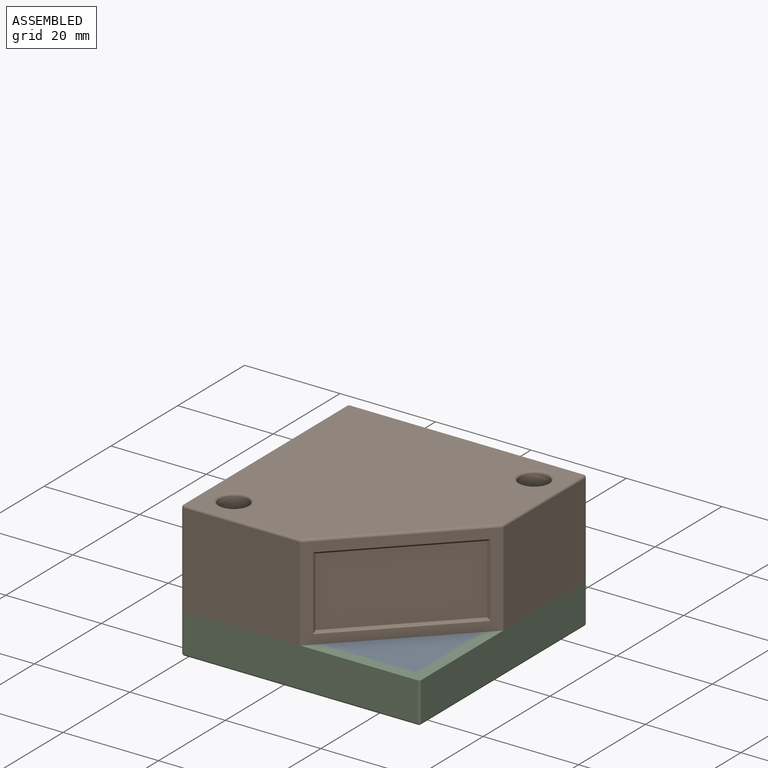
[diagram: assembled view]
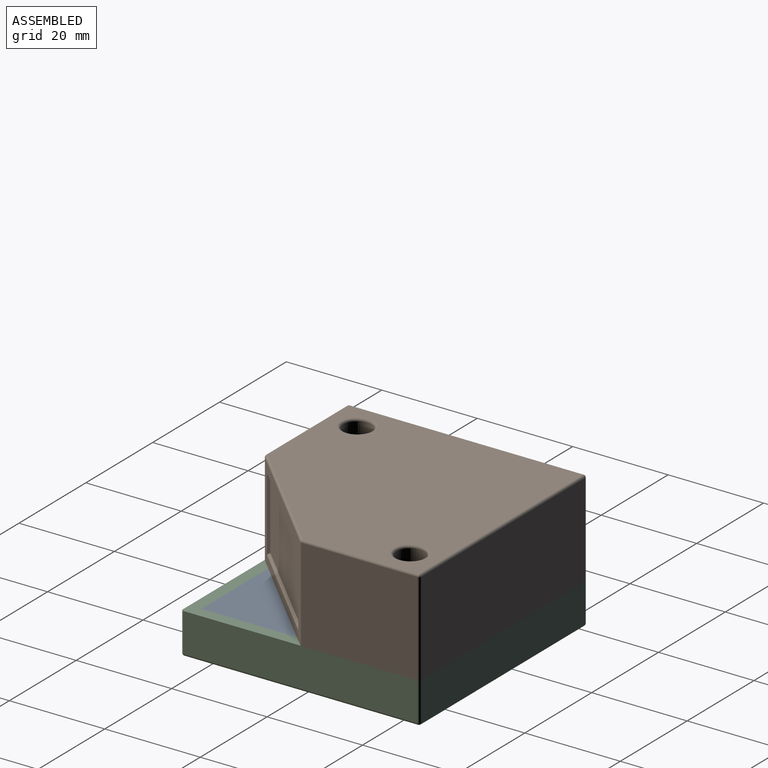
[diagram: assembled view, second angle]
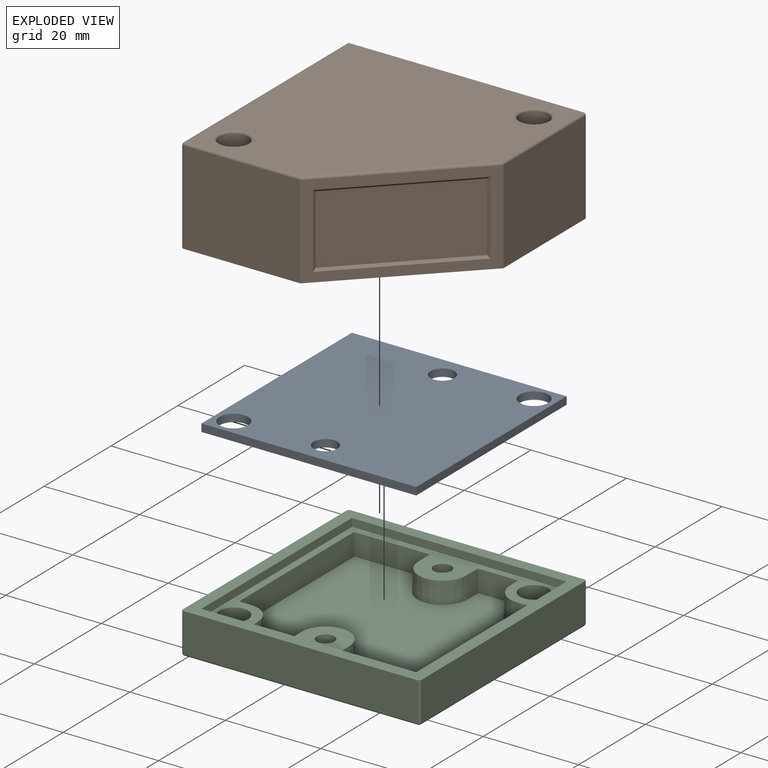
[diagram: exploded view]
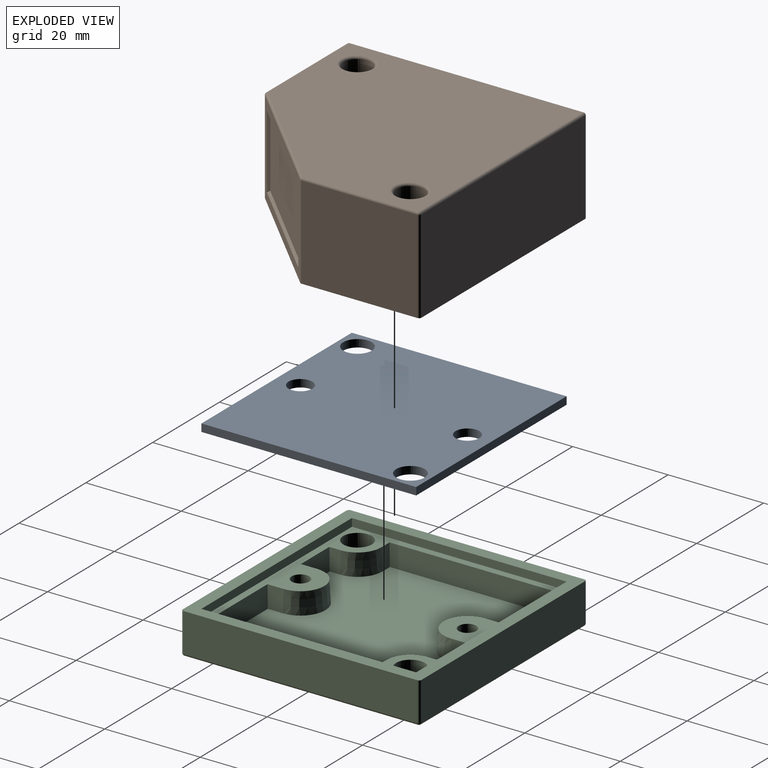
[diagram: exploded view, second angle]
ASSEMBLY  parts=3 mates=2
PART A: 10 faces, bbox 45x45x1.6 mm
  f0: plane 45x1.6mm, normal (0,-1,0), area 72mm2, adj f1,f4,f8,f9
  f1: plane 45x1.6mm, normal (1,0,0), area 72mm2, adj f0,f2,f8,f9
  f2: plane 45x1.6mm, normal (0,1,0), area 72mm2, adj f1,f4,f8,f9
  f3: cylinder r=3mm len=6mm, axis (0,0,-1), area 30.2mm2, adj f8,f9
  f4: plane 45x1.6mm, normal (-1,0,0), area 72mm2, adj f0,f2,f8,f9
  f5: cylinder r=2.5mm len=5mm, axis (0,0,-1), area 25.1mm2, adj f8,f9
  f6: cylinder r=2.5mm len=5mm, axis (0,0,-1), area 25.1mm2, adj f8,f9
  f7: cylinder r=3mm len=6mm, axis (0,0,-1), area 30.2mm2, adj f8,f9
  f8: plane 45x45mm, normal (0,0,1), area 1929.2mm2, adj f0,f1,f2,f3,f4,f5,f6,f7
  f9: plane 45x45mm, normal (0,0,-1), area 1929.2mm2, adj f0,f1,f2,f3,f4,f5,f6,f7
PART B: 55 faces, bbox 50x50x20 mm
  f0: plane 24.71x24.71mm, normal (0.71,-0.71,0), area 201.8mm2, adj f8,f43,f47,f49,f51,f52,f53,f54
  f1: plane 17.5x17.5mm, normal (0,-1,0), area 306.2mm2, adj f2,f8,f13,f28
  f2: plane 45x45mm, normal (0,0,-1), area 1435.6mm2, adj f1,f3,f4,f5,f6,f13,f16,f17
  f3: plane 17.5x8.5mm, normal (0,1,0), area 148.8mm2, adj f2,f8,f18,f24
  f4: plane 17.5x16.98mm, normal (-0.71,0.71,0), area 420.3mm2, adj f2,f5,f8,f23
  f5: plane 17.5x12.46mm, normal (-1,0,0), area 218.1mm2, adj f2,f4,f8,f19
  f6: plane 17.5x8.5mm, normal (0,-1,0), area 148.8mm2, adj f2,f8,f21,f30
  f7: plane 49x49mm, normal (0,0,1), area 2018.8mm2, adj f33,f34,f36,f41,f42,f46,f47
  f8: plane 50x50mm, normal (0,0,-1), area 680.8mm2, adj f0,f1,f3,f4,f5,f6,f9,f10
  f9: plane 24.29x19.5mm, normal (0,-1,0), area 473.7mm2, adj f8,f40,f46,f49
  f10: plane 24.29x19.5mm, normal (1,0,0), area 473.7mm2, adj f8,f37,f42,f43
  f11: plane 49x19.5mm, normal (0,1,0), area 955.5mm2, adj f8,f35,f36,f37
  f12: plane 49x19.5mm, normal (-1,0,0), area 822.8mm2, adj f8,f32,f35,f40,f41
  f13: plane 36x17.5mm, normal (1,0,0), area 497.3mm2, adj f1,f2,f8,f16,f32
  f14: cylinder r=3mm len=19.5mm, axis (0,0,-1), area 367.6mm2, adj f8,f33
  f15: cylinder r=3mm len=19.5mm, axis (0,0,-1), area 367.6mm2, adj f8,f34
  f16: plane 17.5x4mm, normal (0,1,0), area 70mm2, adj f2,f8,f13,f17
  f17: cylinder r=5mm len=17.5mm, axis (0,0,1), area 137.4mm2, adj f2,f8,f16,f18
  f18: plane 17.5x4mm, normal (1,0,0), area 70mm2, adj f2,f3,f8,f17
  f19: plane 17.5x4mm, normal (0,-1,0), area 70mm2, adj f2,f5,f8,f20
  f20: cylinder r=5mm len=17.5mm, axis (0,0,1), area 137.4mm2, adj f2,f8,f19,f21
  f21: plane 17.5x4mm, normal (-1,0,0), area 70mm2, adj f2,f6,f8,f20
  f22: cylinder r=5mm len=17.5mm, axis (0,0,1), area 206.2mm2, adj f2,f8,f23,f24
  f23: plane 17.5x1.98mm, normal (0.71,0.71,0), area 49.1mm2, adj f2,f4,f8,f22
  f24: plane 17.5x5mm, normal (-1,0,0), area 87.5mm2, adj f2,f3,f8,f22
  f25: cylinder r=1.51mm len=17.5mm, axis (0,0,1), area 166mm2, adj f8,f26
  f26: plane 3.02x3.02mm, normal (0,0,-1), area 7.2mm2, adj f25
  f27: cylinder r=5mm len=17.5mm, axis (0,0,1), area 274.9mm2, adj f2,f8,f28,f30
  f28: plane 17.5x5mm, normal (-1,0,0), area 87.5mm2, adj f1,f2,f8,f27
  f29: cylinder r=1.51mm len=17.5mm, axis (0,0,1), area 166mm2, adj f8,f31
  f30: plane 17.5x5mm, normal (1,0,0), area 87.5mm2, adj f2,f6,f8,f27
  f31: plane 3.02x3.02mm, normal (0,0,-1), area 7.2mm2, adj f29
  f32: cylinder r=6.5mm len=13mm, axis (-1,0,0), area 102.1mm2, adj f12,f13
  f33: torus R=3.5mm, axis (0,0,1), area 15.7mm2, adj f7,f14
  f34: torus R=3.5mm, axis (0,0,1), area 15.7mm2, adj f7,f15
  f35: cylinder r=0.5mm len=19.5mm, axis (0,0,-1), area 15.3mm2, adj f8,f11,f12,f38
  f36: cylinder r=0.5mm len=49mm, axis (1,0,0), area 38.5mm2, adj f7,f11,f38,f39
  f37: cylinder r=0.5mm len=19.5mm, axis (0,0,1), area 15.3mm2, adj f8,f10,f11,f39
  f38: sphere r=0.5mm, area 0.4mm2, adj f35,f36,f41
  f39: sphere r=0.5mm, area 0.4mm2, adj f36,f37,f42
  f40: cylinder r=0.5mm len=19.5mm, axis (0,0,1), area 15.3mm2, adj f8,f9,f12,f44
  f41: cylinder r=0.5mm len=49mm, axis (0,1,0), area 38.5mm2, adj f7,f12,f38,f44
  f42: cylinder r=0.5mm len=24.29mm, axis (0,-1,0), area 19.1mm2, adj f7,f10,f39,f45
  f43: cylinder r=0.5mm len=19.5mm, axis (0,0,1), area 7.7mm2, adj f0,f8,f10,f45
  f44: sphere r=0.5mm, area 0.4mm2, adj f40,f41,f46
  f45: sphere r=0.5mm, area 0.2mm2, adj f42,f43,f47
  f46: cylinder r=0.5mm len=24.29mm, axis (-1,0,0), area 19.1mm2, adj f7,f9,f44,f48
  f47: cylinder r=0.5mm len=25.06mm, axis (-0.71,-0.71,0), area 27.4mm2, adj f0,f7,f45,f48
  f48: sphere r=0.5mm, area 0.2mm2, adj f46,f47,f49
  f49: cylinder r=0.5mm len=19.5mm, axis (0,0,1), area 7.7mm2, adj f0,f8,f9,f48
  f50: plane 21.17x21.17mm, normal (0.71,-0.71,0), area 434.1mm2, adj f51,f52,f53,f54
  f51: plane 15.5x0.71mm, normal (0,-1,0), area 10.6mm2, adj f0,f50,f52,f53
  f52: plane 21.88x21.88mm, normal (0.5,-0.5,-0.71), area 21.5mm2, adj f0,f50,f51,f54
  f53: plane 21.88x21.88mm, normal (0.5,-0.5,0.71), area 21.5mm2, adj f0,f50,f51,f54
  f54: plane 15.5x0.71mm, normal (1,0,0), area 10.6mm2, adj f0,f50,f52,f53
PART C: 52 faces, bbox 50x50x8.6 mm
  f0: plane 49x49mm, normal (0,0,-1), area 2247.1mm2, adj f35,f37,f38,f39,f43,f44,f48,f49
  f1: cylinder r=1.85mm len=3.7mm, axis (0,0,1), area 34.9mm2, adj f3,f36
  f2: cylinder r=1.85mm len=3.7mm, axis (0,0,1), area 34.9mm2, adj f3,f34
  f3: plane 44.83x44.83mm, normal (0,0,1), area 428.1mm2, adj f1,f2,f9,f10,f11,f12,f13,f14
  f4: plane 50x50mm, normal (0,0,1), area 474.8mm2, adj f5,f6,f7,f8,f9,f10,f11,f12
  f5: plane 49x8.1mm, normal (0,-1,0), area 396.9mm2, adj f4,f45,f49,f51
  f6: plane 49x8.1mm, normal (1,0,0), area 396.9mm2, adj f4,f42,f48,f51
  f7: plane 49x8.1mm, normal (0,1,0), area 396.9mm2, adj f4,f40,f42,f43
  f8: plane 49x8.1mm, normal (-1,0,0), area 396.9mm2, adj f4,f40,f44,f45
  f9: plane 45x1.6mm, normal (0,1,0.05), area 72mm2, adj f3,f4,f10,f12
  f10: plane 45x1.6mm, normal (-1,0,0.05), area 72mm2, adj f3,f4,f9,f11
  f11: plane 45x1.6mm, normal (0,-1,0.05), area 72mm2, adj f3,f4,f10,f12
  f12: plane 45x1.6mm, normal (1,0,0.05), area 72mm2, adj f3,f4,f9,f11
  f13: plane 4.5x2.42mm, normal (1,0,0.05), area 10.4mm2, adj f3,f14,f30,f31
  f14: plane 8.5x4.5mm, normal (0,1,0.05), area 37.2mm2, adj f3,f13,f15,f31
  f15: plane 4.5x3.42mm, normal (-1,0,0.05), area 14.9mm2, adj f3,f14,f16,f31
  f16: cone r=5mm half-angle=3deg, axis (0,0,-1), area 72.5mm2, adj f3,f15,f17,f31
  f17: plane 4.5x3.42mm, normal (1,0,0.05), area 14.9mm2, adj f3,f16,f18,f31
  f18: plane 15.92x4.5mm, normal (0,1,0.05), area 70.7mm2, adj f3,f17,f19,f31
  f19: plane 34.42x4.5mm, normal (-1,0,0.05), area 154mm2, adj f3,f18,f20,f31
  f20: plane 4.5x2.42mm, normal (0,-1,0.05), area 10.4mm2, adj f3,f19,f21,f31
  f21: cone r=5mm half-angle=3deg, axis (0,0,-1), area 36.2mm2, adj f3,f20,f22,f31
  f22: plane 4.5x2.42mm, normal (-1,0,0.05), area 10.4mm2, adj f3,f21,f23,f31
  f23: plane 8.5x4.5mm, normal (0,-1,0.05), area 37.2mm2, adj f3,f22,f24,f31
  f24: plane 4.5x3.42mm, normal (1,0,0.05), area 14.9mm2, adj f3,f23,f25,f31
  f25: cone r=5mm half-angle=3deg, axis (0,0,-1), area 72.5mm2, adj f3,f24,f26,f31
  f26: plane 4.5x3.42mm, normal (-1,0,0.05), area 14.9mm2, adj f3,f25,f27,f31
  f27: plane 15.92x4.5mm, normal (0,-1,0.05), area 70.7mm2, adj f3,f26,f28,f31
  f28: plane 34.42x4.5mm, normal (1,0,0.05), area 154mm2, adj f3,f27,f29,f31
  f29: plane 4.5x2.42mm, normal (0,1,0.05), area 10.4mm2, adj f3,f28,f30,f31
  f30: cone r=5mm half-angle=3deg, axis (0,0,-1), area 36.2mm2, adj f3,f13,f29,f31
  f31: plane 41.36x41.36mm, normal (0,0,1), area 1459.7mm2, adj f13,f14,f15,f16,f17,f18,f19,f20
  f32: cylinder r=3mm len=6.5mm, axis (0,0,1), area 122.5mm2, adj f3,f39
  f33: cylinder r=3mm len=6.5mm, axis (0,0,1), area 122.5mm2, adj f3,f38
  f34: plane 7x7mm, normal (0,0,-1), area 27.7mm2, adj f2,f35
  f35: cylinder r=3.5mm len=7mm, axis (0,0,-1), area 88mm2, adj f0,f34
  f36: plane 7x7mm, normal (0,0,-1), area 27.7mm2, adj f1,f37
  f37: cylinder r=3.5mm len=7mm, axis (0,0,-1), area 88mm2, adj f0,f36
  f38: torus R=3.5mm, axis (0,0,1), area 15.7mm2, adj f0,f33
  f39: torus R=3.5mm, axis (0,0,1), area 15.7mm2, adj f0,f32
  f40: cylinder r=0.5mm len=8.1mm, axis (0,0,1), area 6.4mm2, adj f4,f7,f8,f41
  f41: sphere r=0.5mm, area 0.4mm2, adj f40,f43,f44
  f42: cylinder r=0.5mm len=8.1mm, axis (0,0,-1), area 6.4mm2, adj f4,f6,f7,f46
  f43: cylinder r=0.5mm len=49mm, axis (1,0,0), area 38.5mm2, adj f0,f7,f41,f46
  f44: cylinder r=0.5mm len=49mm, axis (0,1,0), area 38.5mm2, adj f0,f8,f41,f47
  f45: cylinder r=0.5mm len=8.1mm, axis (0,0,-1), area 6.4mm2, adj f4,f5,f8,f47
  f46: sphere r=0.5mm, area 0.4mm2, adj f42,f43,f48
  f47: sphere r=0.5mm, area 0.4mm2, adj f44,f45,f49
  f48: cylinder r=0.5mm len=49mm, axis (0,-1,0), area 38.5mm2, adj f0,f6,f46,f50
  f49: cylinder r=0.5mm len=49mm, axis (-1,0,0), area 38.5mm2, adj f0,f5,f47,f50
  f50: sphere r=0.5mm, area 0.4mm2, adj f48,f49,f51
  f51: cylinder r=0.5mm len=8.1mm, axis (0,0,1), area 6.4mm2, adj f4,f5,f6,f50
PLACE A t=(5.16,0.11,-0.48)mm
PLACE B t=(5.16,0.11,1.12)mm
PLACE C t=(5.16,0.11,1.12)mm
MATE fastened B.f8 <-> C.f4  axis (0,0,-1) through (-17.34,22.61,1.12)mm
MATE fastened C.f4 <-> A.f8  axis (0,0,1) through (27.66,-22.39,1.12)mm
